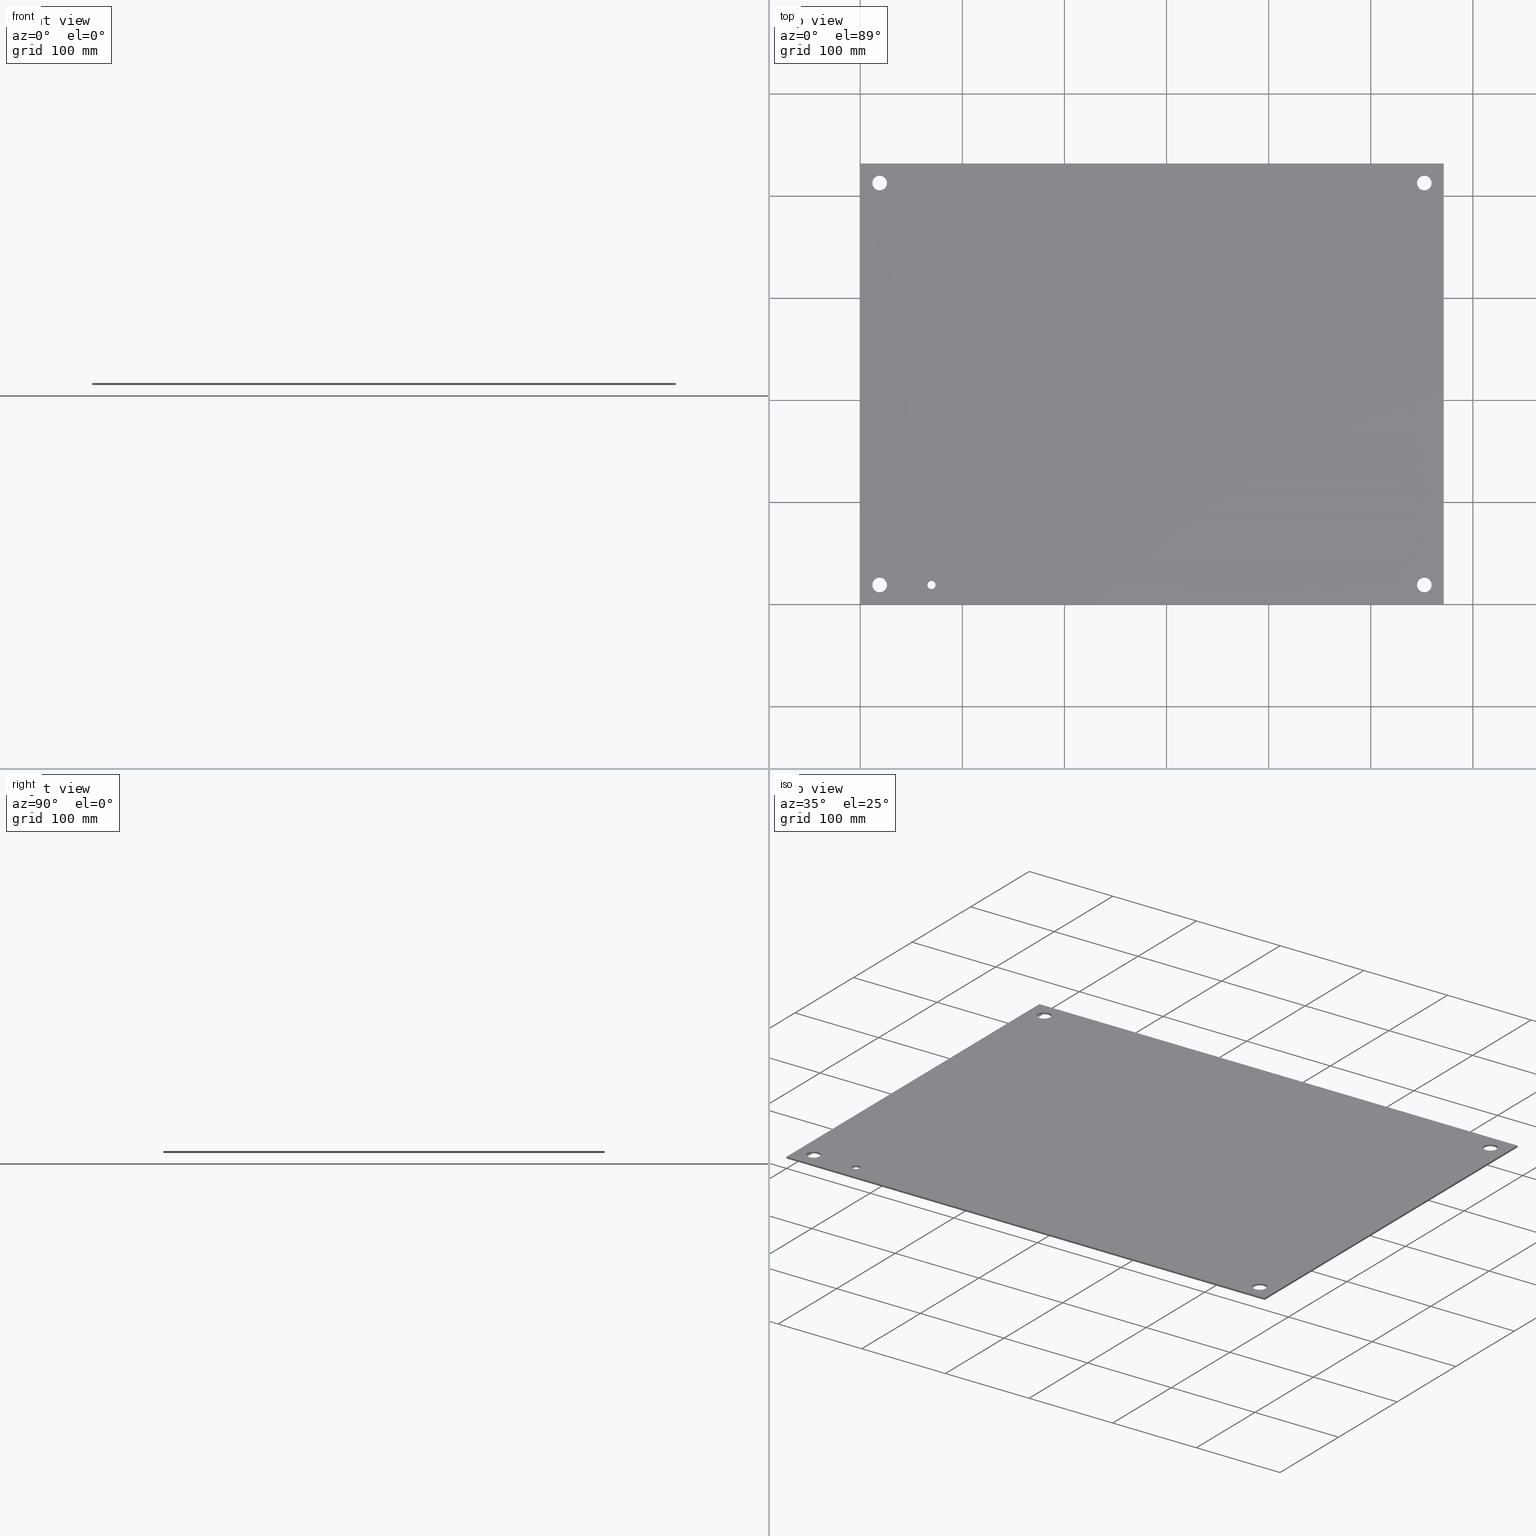
[diagram: canonical four-view strip — front | top / right | iso, engineering-drawing reading convention]
A machine part, canonical four-view strip (front | top / right | iso — engineering-drawing reading convention). The complete STEP part file that produces these views, byte-faithful:
ISO-10303-21;
HEADER;
/****************************************************************
 * Generated by software with PDElib inside                    *
 * PDElib Version v51a, created Tue 11/30/2010                  *
 * ITI Transcendata (http://www.transcendata.com/)              *
 ****************************************************************/
FILE_DESCRIPTION((''),'2;1');
FILE_NAME('C:\\W_Vault\\W-India\\Panels\\N1P Large\\N1P LARGE DXF STP\\N1P2420.stp','2013-06-14T16:05:23',('ps'),(''),'Autodesk Inventor 2012','Autodesk Inventor 2012','');
FILE_SCHEMA(('AUTOMOTIVE_DESIGN { 1 0 10303 214 1 1 1 1 }'));
ENDSEC;
DATA;
#5=APPLICATION_CONTEXT('automotive design');
#6=APPLICATION_PROTOCOL_DEFINITION('International Standard','automotive_design',2001,#5);
#7=PRODUCT_CONTEXT('',#5,'mechanical');
#8=PRODUCT('N1P2420-1','N1P2420-1',$,(#7));
#9=PRODUCT_RELATED_PRODUCT_CATEGORY('part',$,(#8));
#10=PRODUCT_DEFINITION_FORMATION('',$,#8);
#11=PRODUCT_DEFINITION_CONTEXT('part definition',#5,'design');
#12=PRODUCT_DEFINITION('',$,#10,#11);
#18=(NAMED_UNIT(*)PLANE_ANGLE_UNIT()SI_UNIT($,.RADIAN.));
#19=DIMENSIONAL_EXPONENTS(0.0,0.0,0.0,0.0,0.0,0.0,0.0);
#20=PLANE_ANGLE_MEASURE_WITH_UNIT(PLANE_ANGLE_MEASURE(0.0174532925),#18);
#24=(CONVERSION_BASED_UNIT('DEGREE',#20)NAMED_UNIT(#19)PLANE_ANGLE_UNIT());
#28=(NAMED_UNIT(*)SI_UNIT($,.STERADIAN.)SOLID_ANGLE_UNIT());
#32=(LENGTH_UNIT()NAMED_UNIT(*)SI_UNIT(.CENTI.,.METRE.));
#33=DIMENSIONAL_EXPONENTS(1.0,0.0,0.0,0.0,0.0,0.0,0.0);
#34=LENGTH_MEASURE_WITH_UNIT(LENGTH_MEASURE(2.54),#32);
#38=(CONVERSION_BASED_UNIT('INCH',#34)LENGTH_UNIT()NAMED_UNIT(#33));
#40=UNCERTAINTY_MEASURE_WITH_UNIT(LENGTH_MEASURE(0.000393700787402),#38,'DISTANCE_ACCURACY_VALUE','');
#42=(GEOMETRIC_REPRESENTATION_CONTEXT(3)GLOBAL_UNCERTAINTY_ASSIGNED_CONTEXT((#40))GLOBAL_UNIT_ASSIGNED_CONTEXT((#24,#28,#38))REPRESENTATION_CONTEXT('None','None'));
#43=AXIS2_PLACEMENT_3D('',#44,#45,#46);
#44=CARTESIAN_POINT('',(0.0,0.0,0.0));
#45=DIRECTION('',(0.0,0.0,1.0));
#46=DIRECTION('',(1.0,0.0,0.0));
#47=SHAPE_REPRESENTATION('',(#43),#42);
#48=PRODUCT_DEFINITION_SHAPE('','',#12);
#49=SHAPE_DEFINITION_REPRESENTATION(#48,#47);
#55=(NAMED_UNIT(*)PLANE_ANGLE_UNIT()SI_UNIT($,.RADIAN.));
#56=DIMENSIONAL_EXPONENTS(0.0,0.0,0.0,0.0,0.0,0.0,0.0);
#57=PLANE_ANGLE_MEASURE_WITH_UNIT(PLANE_ANGLE_MEASURE(0.0174532925),#55);
#61=(CONVERSION_BASED_UNIT('DEGREE',#57)NAMED_UNIT(#56)PLANE_ANGLE_UNIT());
#65=(NAMED_UNIT(*)SI_UNIT($,.STERADIAN.)SOLID_ANGLE_UNIT());
#69=(LENGTH_UNIT()NAMED_UNIT(*)SI_UNIT(.MILLI.,.METRE.));
#71=UNCERTAINTY_MEASURE_WITH_UNIT(LENGTH_MEASURE(0.000001),#69,'DISTANCE_ACCURACY_VALUE','');
#73=(GEOMETRIC_REPRESENTATION_CONTEXT(3)GLOBAL_UNCERTAINTY_ASSIGNED_CONTEXT((#71))GLOBAL_UNIT_ASSIGNED_CONTEXT((#61,#65,#69))REPRESENTATION_CONTEXT('','3D'));
#74=CARTESIAN_POINT('',(2.749999999999999,0.749999999999999,0.037));
#75=DIRECTION('',(0.0,0.0,1.0));
#76=DIRECTION('',(1.0,0.0,0.0));
#77=AXIS2_PLACEMENT_3D('',#74,#75,#76);
#78=CYLINDRICAL_SURFACE('',#77,0.156);
#79=CARTESIAN_POINT('',(2.905999999999999,0.749999999999999,0.074));
#80=VERTEX_POINT('',#79);
#81=CARTESIAN_POINT('',(2.749999999999999,0.749999999999999,0.074));
#82=DIRECTION('',(0.0,0.0,-1.0));
#83=DIRECTION('',(1.0,0.0,0.0));
#84=AXIS2_PLACEMENT_3D('',#81,#82,#83);
#85=CIRCLE('',#84,0.156);
#86=EDGE_CURVE('',#80,#80,#85,.T.);
#87=ORIENTED_EDGE('',*,*,#86,.F.);
#88=EDGE_LOOP('',(#87));
#89=FACE_OUTER_BOUND('',#88,.T.);
#90=CARTESIAN_POINT('',(2.905999999999999,0.749999999999999,0.0));
#91=VERTEX_POINT('',#90);
#92=CARTESIAN_POINT('',(2.749999999999999,0.749999999999999,0.0));
#93=DIRECTION('',(0.0,0.0,1.0));
#94=DIRECTION('',(1.0,0.0,0.0));
#95=AXIS2_PLACEMENT_3D('',#92,#93,#94);
#96=CIRCLE('',#95,0.156);
#97=EDGE_CURVE('',#91,#91,#96,.T.);
#98=ORIENTED_EDGE('',*,*,#97,.F.);
#99=EDGE_LOOP('',(#98));
#100=FACE_BOUND('',#99,.T.);
#101=ADVANCED_FACE('',(#89,#100),#78,.F.);
#102=CARTESIAN_POINT('',(21.75,0.750000000000006,0.037));
#103=DIRECTION('',(0.0,0.0,1.0));
#104=DIRECTION('',(1.0,0.0,0.0));
#105=AXIS2_PLACEMENT_3D('',#102,#103,#104);
#106=CYLINDRICAL_SURFACE('',#105,0.2815);
#107=CARTESIAN_POINT('',(22.031500000000001,0.750000000000006,0.074));
#108=VERTEX_POINT('',#107);
#109=CARTESIAN_POINT('',(21.75,0.750000000000006,0.074));
#110=DIRECTION('',(0.0,0.0,-1.0));
#111=DIRECTION('',(1.0,0.0,0.0));
#112=AXIS2_PLACEMENT_3D('',#109,#110,#111);
#113=CIRCLE('',#112,0.2815);
#114=EDGE_CURVE('',#108,#108,#113,.T.);
#115=ORIENTED_EDGE('',*,*,#114,.F.);
#116=EDGE_LOOP('',(#115));
#117=FACE_OUTER_BOUND('',#116,.T.);
#118=CARTESIAN_POINT('',(22.031500000000001,0.750000000000006,0.0));
#119=VERTEX_POINT('',#118);
#120=CARTESIAN_POINT('',(21.75,0.750000000000006,0.0));
#121=DIRECTION('',(0.0,0.0,1.0));
#122=DIRECTION('',(1.0,0.0,0.0));
#123=AXIS2_PLACEMENT_3D('',#120,#121,#122);
#124=CIRCLE('',#123,0.2815);
#125=EDGE_CURVE('',#119,#119,#124,.T.);
#126=ORIENTED_EDGE('',*,*,#125,.F.);
#127=EDGE_LOOP('',(#126));
#128=FACE_BOUND('',#127,.T.);
#129=ADVANCED_FACE('',(#117,#128),#106,.F.);
#130=CARTESIAN_POINT('',(0.75,0.75,0.037));
#131=DIRECTION('',(0.0,0.0,1.0));
#132=DIRECTION('',(1.0,0.0,0.0));
#133=AXIS2_PLACEMENT_3D('',#130,#131,#132);
#134=CYLINDRICAL_SURFACE('',#133,0.2815);
#135=CARTESIAN_POINT('',(1.0315,0.75,0.074));
#136=VERTEX_POINT('',#135);
#137=CARTESIAN_POINT('',(0.75,0.75,0.074));
#138=DIRECTION('',(0.0,0.0,-1.0));
#139=DIRECTION('',(1.0,0.0,0.0));
#140=AXIS2_PLACEMENT_3D('',#137,#138,#139);
#141=CIRCLE('',#140,0.2815);
#142=EDGE_CURVE('',#136,#136,#141,.T.);
#143=ORIENTED_EDGE('',*,*,#142,.F.);
#144=EDGE_LOOP('',(#143));
#145=FACE_OUTER_BOUND('',#144,.T.);
#146=CARTESIAN_POINT('',(1.0315,0.75,0.0));
#147=VERTEX_POINT('',#146);
#148=CARTESIAN_POINT('',(0.75,0.75,0.0));
#149=DIRECTION('',(0.0,0.0,1.0));
#150=DIRECTION('',(1.0,0.0,0.0));
#151=AXIS2_PLACEMENT_3D('',#148,#149,#150);
#152=CIRCLE('',#151,0.2815);
#153=EDGE_CURVE('',#147,#147,#152,.T.);
#154=ORIENTED_EDGE('',*,*,#153,.F.);
#155=EDGE_LOOP('',(#154));
#156=FACE_BOUND('',#155,.T.);
#157=ADVANCED_FACE('',(#145,#156),#134,.F.);
#158=CARTESIAN_POINT('',(21.749999999999993,16.250000000000007,0.037));
#159=DIRECTION('',(0.0,0.0,1.0));
#160=DIRECTION('',(1.0,0.0,0.0));
#161=AXIS2_PLACEMENT_3D('',#158,#159,#160);
#162=CYLINDRICAL_SURFACE('',#161,0.2815);
#163=CARTESIAN_POINT('',(22.031499999999994,16.250000000000007,0.074));
#164=VERTEX_POINT('',#163);
#165=CARTESIAN_POINT('',(21.749999999999993,16.250000000000007,0.074));
#166=DIRECTION('',(0.0,0.0,-1.0));
#167=DIRECTION('',(1.0,0.0,0.0));
#168=AXIS2_PLACEMENT_3D('',#165,#166,#167);
#169=CIRCLE('',#168,0.2815);
#170=EDGE_CURVE('',#164,#164,#169,.T.);
#171=ORIENTED_EDGE('',*,*,#170,.F.);
#172=EDGE_LOOP('',(#171));
#173=FACE_OUTER_BOUND('',#172,.T.);
#174=CARTESIAN_POINT('',(22.031499999999994,16.250000000000007,0.0));
#175=VERTEX_POINT('',#174);
#176=CARTESIAN_POINT('',(21.749999999999993,16.250000000000007,0.0));
#177=DIRECTION('',(0.0,0.0,1.0));
#178=DIRECTION('',(1.0,0.0,0.0));
#179=AXIS2_PLACEMENT_3D('',#176,#177,#178);
#180=CIRCLE('',#179,0.2815);
#181=EDGE_CURVE('',#175,#175,#180,.T.);
#182=ORIENTED_EDGE('',*,*,#181,.F.);
#183=EDGE_LOOP('',(#182));
#184=FACE_BOUND('',#183,.T.);
#185=ADVANCED_FACE('',(#173,#184),#162,.F.);
#186=CARTESIAN_POINT('',(0.749999999999995,16.250000000000004,0.037));
#187=DIRECTION('',(0.0,0.0,1.0));
#188=DIRECTION('',(1.0,0.0,0.0));
#189=AXIS2_PLACEMENT_3D('',#186,#187,#188);
#190=CYLINDRICAL_SURFACE('',#189,0.2815);
#191=CARTESIAN_POINT('',(1.031499999999995,16.250000000000004,0.074));
#192=VERTEX_POINT('',#191);
#193=CARTESIAN_POINT('',(0.749999999999995,16.250000000000004,0.074));
#194=DIRECTION('',(0.0,0.0,-1.0));
#195=DIRECTION('',(1.0,0.0,0.0));
#196=AXIS2_PLACEMENT_3D('',#193,#194,#195);
#197=CIRCLE('',#196,0.2815);
#198=EDGE_CURVE('',#192,#192,#197,.T.);
#199=ORIENTED_EDGE('',*,*,#198,.F.);
#200=EDGE_LOOP('',(#199));
#201=FACE_OUTER_BOUND('',#200,.T.);
#202=CARTESIAN_POINT('',(1.031499999999995,16.250000000000004,0.0));
#203=VERTEX_POINT('',#202);
#204=CARTESIAN_POINT('',(0.749999999999995,16.250000000000004,0.0));
#205=DIRECTION('',(0.0,0.0,1.0));
#206=DIRECTION('',(1.0,0.0,0.0));
#207=AXIS2_PLACEMENT_3D('',#204,#205,#206);
#208=CIRCLE('',#207,0.2815);
#209=EDGE_CURVE('',#203,#203,#208,.T.);
#210=ORIENTED_EDGE('',*,*,#209,.F.);
#211=EDGE_LOOP('',(#210));
#212=FACE_BOUND('',#211,.T.);
#213=ADVANCED_FACE('',(#201,#212),#190,.F.);
#214=CARTESIAN_POINT('',(0.0,0.0,0.0));
#215=DIRECTION('',(-1.0,0.0,0.0));
#216=DIRECTION('',(0.0,0.0,1.0));
#217=AXIS2_PLACEMENT_3D('',#214,#215,#216);
#218=PLANE('',#217);
#219=CARTESIAN_POINT('',(0.0,0.0,0.074));
#220=VERTEX_POINT('',#219);
#221=CARTESIAN_POINT('',(-5.204749E-015,17.000000000000004,0.074));
#222=VERTEX_POINT('',#221);
#223=CARTESIAN_POINT('',(0.0,0.0,0.074));
#224=DIRECTION('',(0.0,1.0,0.0));
#225=VECTOR('',#224,17.000000000000004);
#226=LINE('',#223,#225);
#227=EDGE_CURVE('',#220,#222,#226,.T.);
#228=ORIENTED_EDGE('',*,*,#227,.T.);
#229=CARTESIAN_POINT('',(-5.204749E-015,17.000000000000004,0.0));
#230=VERTEX_POINT('',#229);
#231=CARTESIAN_POINT('',(-5.204749E-015,17.000000000000004,0.0));
#232=DIRECTION('',(0.0,0.0,1.0));
#233=VECTOR('',#232,0.074);
#234=LINE('',#231,#233);
#235=EDGE_CURVE('',#230,#222,#234,.T.);
#236=ORIENTED_EDGE('',*,*,#235,.F.);
#237=CARTESIAN_POINT('',(0.0,0.0,0.0));
#238=VERTEX_POINT('',#237);
#239=CARTESIAN_POINT('',(-5.204749E-015,17.000000000000004,0.0));
#240=DIRECTION('',(0.0,-1.0,0.0));
#241=VECTOR('',#240,17.000000000000004);
#242=LINE('',#239,#241);
#243=EDGE_CURVE('',#230,#238,#242,.T.);
#244=ORIENTED_EDGE('',*,*,#243,.T.);
#245=CARTESIAN_POINT('',(0.0,0.0,0.0));
#246=DIRECTION('',(0.0,0.0,1.0));
#247=VECTOR('',#246,0.074);
#248=LINE('',#245,#247);
#249=EDGE_CURVE('',#238,#220,#248,.T.);
#250=ORIENTED_EDGE('',*,*,#249,.T.);
#251=EDGE_LOOP('',(#228,#236,#244,#250));
#252=FACE_OUTER_BOUND('',#251,.T.);
#253=ADVANCED_FACE('',(#252),#218,.T.);
#254=CARTESIAN_POINT('',(-5.204749E-015,17.000000000000004,0.0));
#255=DIRECTION('',(0.0,1.0,0.0));
#256=DIRECTION('',(0.0,0.0,1.0));
#257=AXIS2_PLACEMENT_3D('',#254,#255,#256);
#258=PLANE('',#257);
#259=CARTESIAN_POINT('',(22.499999999999996,17.000000000000011,0.074));
#260=VERTEX_POINT('',#259);
#261=CARTESIAN_POINT('',(-7.105427E-015,17.000000000000004,0.074));
#262=DIRECTION('',(1.0,0.0,0.0));
#263=VECTOR('',#262,22.500000000000004);
#264=LINE('',#261,#263);
#265=EDGE_CURVE('',#222,#260,#264,.T.);
#266=ORIENTED_EDGE('',*,*,#265,.T.);
#267=CARTESIAN_POINT('',(22.499999999999996,17.000000000000011,0.0));
#268=VERTEX_POINT('',#267);
#269=CARTESIAN_POINT('',(22.499999999999996,17.000000000000011,0.0));
#270=DIRECTION('',(0.0,0.0,1.0));
#271=VECTOR('',#270,0.074);
#272=LINE('',#269,#271);
#273=EDGE_CURVE('',#268,#260,#272,.T.);
#274=ORIENTED_EDGE('',*,*,#273,.F.);
#275=CARTESIAN_POINT('',(22.499999999999996,17.000000000000011,0.0));
#276=DIRECTION('',(-1.0,0.0,0.0));
#277=VECTOR('',#276,22.500000000000004);
#278=LINE('',#275,#277);
#279=EDGE_CURVE('',#268,#230,#278,.T.);
#280=ORIENTED_EDGE('',*,*,#279,.T.);
#281=ORIENTED_EDGE('',*,*,#235,.T.);
#282=EDGE_LOOP('',(#266,#274,#280,#281));
#283=FACE_OUTER_BOUND('',#282,.T.);
#284=ADVANCED_FACE('',(#283),#258,.T.);
#285=CARTESIAN_POINT('',(22.499999999999996,17.000000000000011,0.0));
#286=DIRECTION('',(1.0,0.0,0.0));
#287=DIRECTION('',(0.0,0.0,-1.0));
#288=AXIS2_PLACEMENT_3D('',#285,#286,#287);
#289=PLANE('',#288);
#290=CARTESIAN_POINT('',(22.5,0.0,0.074));
#291=VERTEX_POINT('',#290);
#292=CARTESIAN_POINT('',(22.499999999999996,17.000000000000011,0.074));
#293=DIRECTION('',(0.0,-1.0,0.0));
#294=VECTOR('',#293,17.000000000000011);
#295=LINE('',#292,#294);
#296=EDGE_CURVE('',#260,#291,#295,.T.);
#297=ORIENTED_EDGE('',*,*,#296,.T.);
#298=CARTESIAN_POINT('',(22.5,0.0,0.0));
#299=VERTEX_POINT('',#298);
#300=CARTESIAN_POINT('',(22.5,0.0,0.0));
#301=DIRECTION('',(0.0,0.0,1.0));
#302=VECTOR('',#301,0.074);
#303=LINE('',#300,#302);
#304=EDGE_CURVE('',#299,#291,#303,.T.);
#305=ORIENTED_EDGE('',*,*,#304,.F.);
#306=CARTESIAN_POINT('',(22.5,0.0,0.0));
#307=DIRECTION('',(0.0,1.0,0.0));
#308=VECTOR('',#307,17.000000000000011);
#309=LINE('',#306,#308);
#310=EDGE_CURVE('',#299,#268,#309,.T.);
#311=ORIENTED_EDGE('',*,*,#310,.T.);
#312=ORIENTED_EDGE('',*,*,#273,.T.);
#313=EDGE_LOOP('',(#297,#305,#311,#312));
#314=FACE_OUTER_BOUND('',#313,.T.);
#315=ADVANCED_FACE('',(#314),#289,.T.);
#316=CARTESIAN_POINT('',(22.5,0.0,0.0));
#317=DIRECTION('',(0.0,-1.0,0.0));
#318=DIRECTION('',(0.0,0.0,-1.0));
#319=AXIS2_PLACEMENT_3D('',#316,#317,#318);
#320=PLANE('',#319);
#321=CARTESIAN_POINT('',(22.5,0.0,0.074));
#322=DIRECTION('',(-1.0,0.0,0.0));
#323=VECTOR('',#322,22.5);
#324=LINE('',#321,#323);
#325=EDGE_CURVE('',#291,#220,#324,.T.);
#326=ORIENTED_EDGE('',*,*,#325,.T.);
#327=ORIENTED_EDGE('',*,*,#249,.F.);
#328=CARTESIAN_POINT('',(0.0,0.0,0.0));
#329=DIRECTION('',(1.0,0.0,0.0));
#330=VECTOR('',#329,22.5);
#331=LINE('',#328,#330);
#332=EDGE_CURVE('',#238,#299,#331,.T.);
#333=ORIENTED_EDGE('',*,*,#332,.T.);
#334=ORIENTED_EDGE('',*,*,#304,.T.);
#335=EDGE_LOOP('',(#326,#327,#333,#334));
#336=FACE_OUTER_BOUND('',#335,.T.);
#337=ADVANCED_FACE('',(#336),#320,.T.);
#338=CARTESIAN_POINT('',(11.249999999999998,8.500000000000005,0.0));
#339=DIRECTION('',(0.0,0.0,1.0));
#340=DIRECTION('',(1.0,0.0,0.0));
#341=AXIS2_PLACEMENT_3D('',#338,#339,#340);
#342=PLANE('',#341);
#343=ORIENTED_EDGE('',*,*,#332,.F.);
#344=ORIENTED_EDGE('',*,*,#243,.F.);
#345=ORIENTED_EDGE('',*,*,#279,.F.);
#346=ORIENTED_EDGE('',*,*,#310,.F.);
#347=EDGE_LOOP('',(#343,#344,#345,#346));
#348=FACE_OUTER_BOUND('',#347,.T.);
#349=ORIENTED_EDGE('',*,*,#97,.T.);
#350=EDGE_LOOP('',(#349));
#351=FACE_BOUND('',#350,.T.);
#352=ORIENTED_EDGE('',*,*,#125,.T.);
#353=EDGE_LOOP('',(#352));
#354=FACE_BOUND('',#353,.T.);
#355=ORIENTED_EDGE('',*,*,#153,.T.);
#356=EDGE_LOOP('',(#355));
#357=FACE_BOUND('',#356,.T.);
#358=ORIENTED_EDGE('',*,*,#181,.T.);
#359=EDGE_LOOP('',(#358));
#360=FACE_BOUND('',#359,.T.);
#361=ORIENTED_EDGE('',*,*,#209,.T.);
#362=EDGE_LOOP('',(#361));
#363=FACE_BOUND('',#362,.T.);
#364=ADVANCED_FACE('',(#348,#351,#354,#357,#360,#363),#342,.F.);
#365=CARTESIAN_POINT('',(11.249999999999998,8.500000000000005,0.074));
#366=DIRECTION('',(0.0,0.0,1.0));
#367=DIRECTION('',(1.0,0.0,0.0));
#368=AXIS2_PLACEMENT_3D('',#365,#366,#367);
#369=PLANE('',#368);
#370=ORIENTED_EDGE('',*,*,#227,.F.);
#371=ORIENTED_EDGE('',*,*,#325,.F.);
#372=ORIENTED_EDGE('',*,*,#296,.F.);
#373=ORIENTED_EDGE('',*,*,#265,.F.);
#374=EDGE_LOOP('',(#370,#371,#372,#373));
#375=FACE_OUTER_BOUND('',#374,.T.);
#376=ORIENTED_EDGE('',*,*,#86,.T.);
#377=EDGE_LOOP('',(#376));
#378=FACE_BOUND('',#377,.T.);
#379=ORIENTED_EDGE('',*,*,#114,.T.);
#380=EDGE_LOOP('',(#379));
#381=FACE_BOUND('',#380,.T.);
#382=ORIENTED_EDGE('',*,*,#142,.T.);
#383=EDGE_LOOP('',(#382));
#384=FACE_BOUND('',#383,.T.);
#385=ORIENTED_EDGE('',*,*,#170,.T.);
#386=EDGE_LOOP('',(#385));
#387=FACE_BOUND('',#386,.T.);
#388=ORIENTED_EDGE('',*,*,#198,.T.);
#389=EDGE_LOOP('',(#388));
#390=FACE_BOUND('',#389,.T.);
#391=ADVANCED_FACE('',(#375,#378,#381,#384,#387,#390),#369,.T.);
#392=CLOSED_SHELL('',(#101,#129,#157,#185,#213,#253,#284,#315,#337,#364,#391));
#393=MANIFOLD_SOLID_BREP('Solid1',#392);
#394=COLOUR_RGB('',0.639216005802155,0.639216005802155,0.686275005340576);
#395=FILL_AREA_STYLE_COLOUR('',#394);
#396=FILL_AREA_STYLE('',(#395));
#397=SURFACE_STYLE_FILL_AREA(#396);
#398=SURFACE_SIDE_STYLE('',(#397));
#399=SURFACE_STYLE_USAGE(.BOTH.,#398);
#400=PRESENTATION_STYLE_ASSIGNMENT((#399));
#401=STYLED_ITEM('',(#400),#101);
#402=STYLED_ITEM('',(#400),#129);
#403=STYLED_ITEM('',(#400),#157);
#404=STYLED_ITEM('',(#400),#185);
#405=STYLED_ITEM('',(#400),#213);
#406=STYLED_ITEM('',(#400),#253);
#407=STYLED_ITEM('',(#400),#284);
#408=STYLED_ITEM('',(#400),#315);
#409=STYLED_ITEM('',(#400),#337);
#410=STYLED_ITEM('',(#400),#364);
#411=STYLED_ITEM('',(#400),#391);
#412=MECHANICAL_DESIGN_GEOMETRIC_PRESENTATION_REPRESENTATION('',(#401,#402,#403,#404,#405,#406,#407,#408,#409,#410,#411,#420),#73);
#413=COLOUR_RGB('Metal-Steel',0.639216005802155,0.639216005802155,0.686275005340576);
#414=FILL_AREA_STYLE_COLOUR('Metal-Steel',#413);
#415=FILL_AREA_STYLE('Metal-Steel',(#414));
#416=SURFACE_STYLE_FILL_AREA(#415);
#417=SURFACE_SIDE_STYLE('Metal-Steel',(#416));
#418=SURFACE_STYLE_USAGE(.BOTH.,#417);
#419=PRESENTATION_STYLE_ASSIGNMENT((#418));
#420=STYLED_ITEM('',(#419),#393);
#421=ADVANCED_BREP_SHAPE_REPRESENTATION('ABSR',(#393),#42);
#422=SHAPE_REPRESENTATION_RELATIONSHIP('SRR','None',#421,#47);
ENDSEC;
END-ISO-10303-21;
